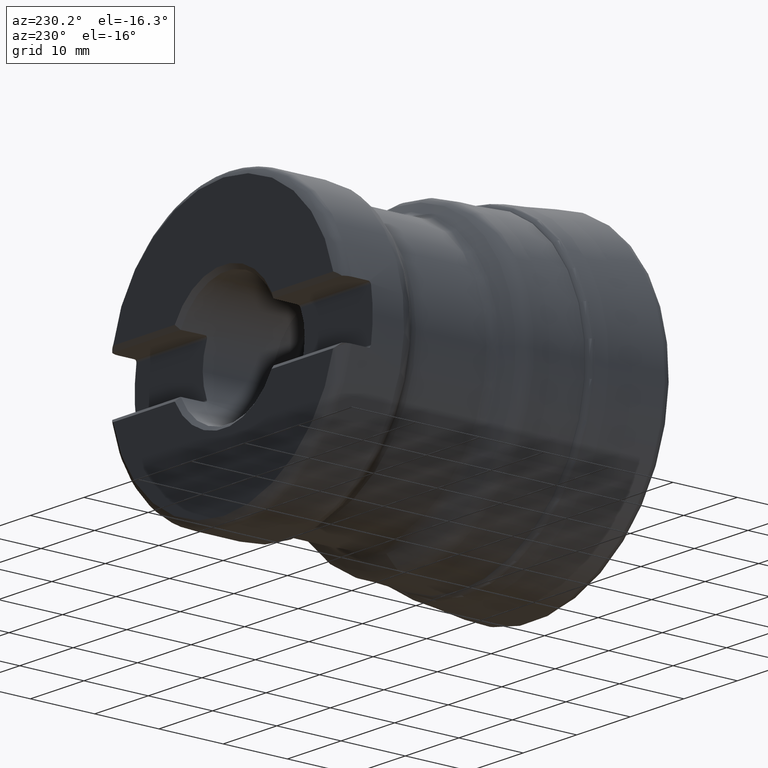
[diagram: clean part render]
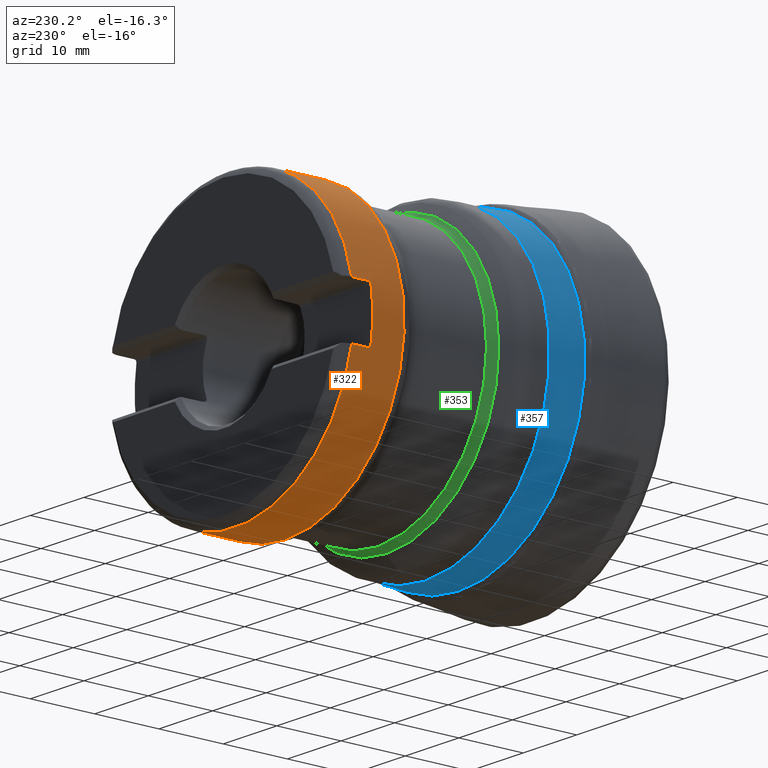
[diagram: same view with three faces highlighted in distinct colors, each labeled with its STEP entity id]
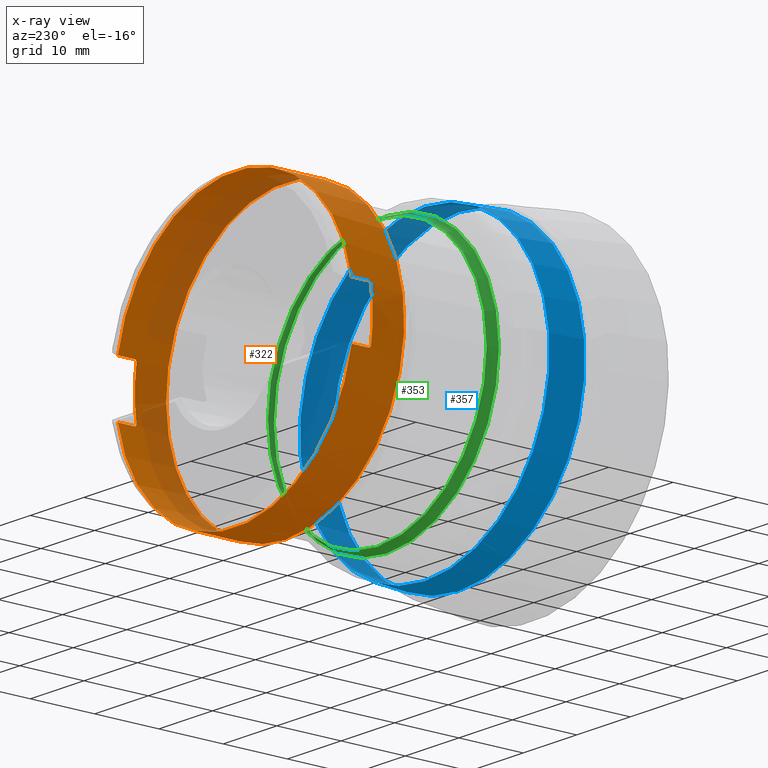
[diagram: x-ray of the same camera — body ghosted, the three highlighted faces saturated]
A machine part, auxiliary view with three faces highlighted in distinct colors.
The next image is the same camera in x-ray (body ghosted, the three faces saturated) — at least one of them is partly hidden behind the body in this view.
Their STEP definitions:

[orange] entity #322 — the highlighted cylindrical surface (bore or boss wall) has radius 22.225 mm, axis along (0, 1, 0).
#216=B_SPLINE_CURVE_WITH_KNOTS('',3,(#1531,#1532,#1533,#1534,#1535,#1536,
#1537,#1538,#1539,#1540,#1541,#1542,#1543,#1544,#1545,#1546),
 .UNSPECIFIED.,.F.,.F.,(4,3,3,3,3,4),(0.,0.210472364967233,0.42083381576524,
0.632936760626975,0.84860430323185,1.),.UNSPECIFIED.);
#217=B_SPLINE_CURVE_WITH_KNOTS('',3,(#1550,#1551,#1552,#1553,#1554,#1555,
#1556,#1557,#1558,#1559,#1560,#1561,#1562,#1563,#1564,#1565),
 .UNSPECIFIED.,.F.,.F.,(4,3,3,3,3,4),(0.,0.219175651858254,0.438420919236843,
0.656459471023132,0.871147037842587,1.),.UNSPECIFIED.);
#218=B_SPLINE_CURVE_WITH_KNOTS('',3,(#1573,#1574,#1575,#1576,#1577,#1578,
#1579,#1580,#1581,#1582,#1583,#1584,#1585,#1586,#1587,#1588),
 .UNSPECIFIED.,.F.,.F.,(4,3,3,3,3,4),(0.,0.210472364967233,0.42083381576524,
0.632936760626975,0.848604303231861,1.),.UNSPECIFIED.);
#219=B_SPLINE_CURVE_WITH_KNOTS('',3,(#1592,#1593,#1594,#1595,#1596,#1597,
#1598,#1599,#1600,#1601,#1602,#1603,#1604,#1605,#1606,#1607),
 .UNSPECIFIED.,.F.,.F.,(4,3,3,3,3,4),(0.,0.219175651858253,0.438420919236838,
0.656459471023132,0.871147037842588,1.),.UNSPECIFIED.);
#265=LINE('',#1524,#293);
#266=LINE('',#1529,#294);
#267=LINE('',#1567,#295);
#268=LINE('',#1571,#296);
#293=VECTOR('',#1248,1.);
#294=VECTOR('',#1251,1.);
#295=VECTOR('',#1254,1.);
#296=VECTOR('',#1257,1.);
#322=ADVANCED_FACE('',(#407,#408),#395,.T.);
#395=CYLINDRICAL_SURFACE('',#1135,22.225);
#407=FACE_BOUND('',#505,.T.);
#408=FACE_BOUND('',#506,.T.);
#505=EDGE_LOOP('',(#627));
#506=EDGE_LOOP('',(#628,#629,#630,#631,#632,#633,#634,#635,#636,#637,#638,
#639));
#627=ORIENTED_EDGE('',*,*,#950,.T.);
#628=ORIENTED_EDGE('',*,*,#951,.F.);
#629=ORIENTED_EDGE('',*,*,#952,.T.);
#630=ORIENTED_EDGE('',*,*,#953,.F.);
#631=ORIENTED_EDGE('',*,*,#954,.T.);
#632=ORIENTED_EDGE('',*,*,#955,.F.);
#633=ORIENTED_EDGE('',*,*,#956,.T.);
#634=ORIENTED_EDGE('',*,*,#957,.F.);
#635=ORIENTED_EDGE('',*,*,#958,.T.);
#636=ORIENTED_EDGE('',*,*,#959,.F.);
#637=ORIENTED_EDGE('',*,*,#960,.T.);
#638=ORIENTED_EDGE('',*,*,#961,.F.);
#639=ORIENTED_EDGE('',*,*,#962,.T.);
#857=VERTEX_POINT('',#1523);
#858=VERTEX_POINT('',#1525);
#859=VERTEX_POINT('',#1526);
#860=VERTEX_POINT('',#1528);
#861=VERTEX_POINT('',#1530);
#862=VERTEX_POINT('',#1547);
#863=VERTEX_POINT('',#1549);
#864=VERTEX_POINT('',#1566);
#865=VERTEX_POINT('',#1568);
#866=VERTEX_POINT('',#1570);
#867=VERTEX_POINT('',#1572);
#868=VERTEX_POINT('',#1589);
#869=VERTEX_POINT('',#1591);
#950=EDGE_CURVE('',#857,#857,#1065,.T.);
#951=EDGE_CURVE('',#858,#859,#265,.T.);
#952=EDGE_CURVE('',#858,#860,#1066,.T.);
#953=EDGE_CURVE('',#861,#860,#266,.T.);
#954=EDGE_CURVE('',#861,#862,#216,.T.);
#955=EDGE_CURVE('',#863,#862,#1067,.T.);
#956=EDGE_CURVE('',#863,#864,#217,.T.);
#957=EDGE_CURVE('',#865,#864,#267,.T.);
#958=EDGE_CURVE('',#865,#866,#1068,.T.);
#959=EDGE_CURVE('',#867,#866,#268,.T.);
#960=EDGE_CURVE('',#867,#868,#218,.T.);
#961=EDGE_CURVE('',#869,#868,#1069,.T.);
#962=EDGE_CURVE('',#869,#859,#219,.T.);
#1065=CIRCLE('',#1130,22.225);
#1066=CIRCLE('',#1131,22.225);
#1067=CIRCLE('',#1132,22.225);
#1068=CIRCLE('',#1133,22.225);
#1069=CIRCLE('',#1134,22.225);
#1130=AXIS2_PLACEMENT_3D('',#1522,#1246,#1247);
#1131=AXIS2_PLACEMENT_3D('',#1527,#1249,#1250);
#1132=AXIS2_PLACEMENT_3D('',#1548,#1252,#1253);
#1133=AXIS2_PLACEMENT_3D('',#1569,#1255,#1256);
#1134=AXIS2_PLACEMENT_3D('',#1590,#1258,#1259);
#1135=AXIS2_PLACEMENT_3D('',#1608,#1260,#1261);
#1246=DIRECTION('',(0.,1.,0.));
#1247=DIRECTION('',(0.,0.,-1.));
#1248=DIRECTION('',(0.,-1.,0.));
#1249=DIRECTION('',(0.,-1.,0.));
#1250=DIRECTION('',(0.,0.,-1.));
#1251=DIRECTION('',(0.,1.,0.));
#1252=DIRECTION('',(0.,1.,0.));
#1253=DIRECTION('',(0.,0.,1.));
#1254=DIRECTION('',(0.,-1.,0.));
#1255=DIRECTION('',(0.,-1.,0.));
#1256=DIRECTION('',(0.,0.,-1.));
#1257=DIRECTION('',(0.,1.,0.));
#1258=DIRECTION('',(0.,1.,0.));
#1259=DIRECTION('',(0.,0.,1.));
#1260=DIRECTION('',(0.,1.,0.));
#1261=DIRECTION('',(0.,0.,1.));
#1522=CARTESIAN_POINT('',(0.,40.3467275947744,0.));
#1523=CARTESIAN_POINT('',(0.,40.3467275947744,-22.225));
#1524=CARTESIAN_POINT('',(21.8293380568445,50.2,4.175));
#1525=CARTESIAN_POINT('',(21.8293380568445,48.1999999999985,4.175));
#1526=CARTESIAN_POINT('',(21.8293380568445,45.65,4.175));
#1527=CARTESIAN_POINT('',(0.,48.1999999999985,0.));
#1528=CARTESIAN_POINT('',(-21.8293380568445,48.1999999999985,4.175));
#1529=CARTESIAN_POINT('',(-21.8293380568445,50.2,4.175));
#1530=CARTESIAN_POINT('',(-21.8293380568445,45.65,4.175));
#1531=CARTESIAN_POINT('',(-21.8293380568445,45.65,4.175));
#1532=CARTESIAN_POINT('',(-21.8293380568445,45.6058065689365,4.175));
#1533=CARTESIAN_POINT('',(-21.8307835969848,45.5610042944692,4.16746058414637));
#1534=CARTESIAN_POINT('',(-21.8335246985364,45.5193163999003,4.15304999228273));
#1535=CARTESIAN_POINT('',(-21.8362649932676,45.477640775816,4.13864364205679));
#1536=CARTESIAN_POINT('',(-21.8403708574228,45.4379363501114,4.11698721111093));
#1537=CARTESIAN_POINT('',(-21.8454369819115,45.4033817039252,4.08992763619786));
#1538=CARTESIAN_POINT('',(-21.8505454572765,45.3685381940228,4.06264185351733));
#1539=CARTESIAN_POINT('',(-21.8567636399886,45.3379824408914,4.0291340727636));
#1540=CARTESIAN_POINT('',(-21.8635161586172,45.3140765837253,3.99215307595866));
#1541=CARTESIAN_POINT('',(-21.8703807036238,45.2897741209754,3.95455855294871));
#1542=CARTESIAN_POINT('',(-21.8779802340845,45.2716813922993,3.91235824001585));
#1543=CARTESIAN_POINT('',(-21.8856499668951,45.2611952766816,3.86897279992283));
#1544=CARTESIAN_POINT('',(-21.8910719580784,45.2537822900978,3.83830217821058));
#1545=CARTESIAN_POINT('',(-21.8966166250354,45.25,3.80655098660402));
#1546=CARTESIAN_POINT('',(-21.9020546981328,45.25,3.775));
#1547=CARTESIAN_POINT('',(-21.9020546981328,45.25,3.775));
#1548=CARTESIAN_POINT('',(0.,45.25,0.));
#1549=CARTESIAN_POINT('',(-21.9020546981328,45.25,-3.77500000000001));
#1550=CARTESIAN_POINT('',(-21.9020546981328,45.25,-3.77500000000001));
#1551=CARTESIAN_POINT('',(-21.8942378183556,45.25,-3.82035251084733));
#1552=CARTESIAN_POINT('',(-21.8861646129708,45.2579246413321,-3.86630445453132));
#1553=CARTESIAN_POINT('',(-21.8785250084134,45.2731349229352,-3.90906235000536));
#1554=CARTESIAN_POINT('',(-21.8708841158101,45.2883477690088,-3.95182745450839));
#1555=CARTESIAN_POINT('',(-21.8634663771173,45.3112785864427,-3.99258709417771));
#1556=CARTESIAN_POINT('',(-21.8569603388711,45.3400872684055,-4.02789147632066));
#1557=CARTESIAN_POINT('',(-21.8504910361036,45.3687332859812,-4.06299651697036));
#1558=CARTESIAN_POINT('',(-21.8447454840731,45.404008252674,-4.09368968980045));
#1559=CARTESIAN_POINT('',(-21.8403011683012,45.4429860639393,-4.1172648539898));
#1560=CARTESIAN_POINT('',(-21.8359245676766,45.4813699956602,-4.14048081874461));
#1561=CARTESIAN_POINT('',(-21.8326910223772,45.5244319116725,-4.15744091253669));
#1562=CARTESIAN_POINT('',(-21.8309401715052,45.5685254717582,-4.16661448038572));
#1563=CARTESIAN_POINT('',(-21.82987941277,45.5952396995513,-4.17217231651233));
#1564=CARTESIAN_POINT('',(-21.8293380568447,45.6226931378936,-4.17500000000069));
#1565=CARTESIAN_POINT('',(-21.8293380568447,45.6499999999999,-4.1750000000007));
#1566=CARTESIAN_POINT('',(-21.8293380568445,45.65,-4.17500000000001));
#1567=CARTESIAN_POINT('',(-21.8293380568445,50.2,-4.175));
#1568=CARTESIAN_POINT('',(-21.8293380568461,48.1999999999987,-4.17500000000001));
#1569=CARTESIAN_POINT('',(0.,48.1999999999985,0.));
#1570=CARTESIAN_POINT('',(21.8293380568445,48.1999999999985,-4.17500000000001));
#1571=CARTESIAN_POINT('',(21.8293380568445,50.2,-4.175));
#1572=CARTESIAN_POINT('',(21.8293380568445,45.65,-4.17500000000001));
#1573=CARTESIAN_POINT('',(21.8293380568445,45.65,-4.17500000000001));
#1574=CARTESIAN_POINT('',(21.8293380568445,45.6058065689365,-4.17500000000001));
#1575=CARTESIAN_POINT('',(21.8307835969848,45.5610042944692,-4.16746058414638));
#1576=CARTESIAN_POINT('',(21.8335246985364,45.5193163999003,-4.15304999228274));
#1577=CARTESIAN_POINT('',(21.8362649932676,45.477640775816,-4.1386436420568));
#1578=CARTESIAN_POINT('',(21.8403708574227,45.4379363501114,-4.11698721111094));
#1579=CARTESIAN_POINT('',(21.8454369819115,45.4033817039252,-4.08992763619787));
#1580=CARTESIAN_POINT('',(21.8505454572765,45.3685381940228,-4.06264185351734));
#1581=CARTESIAN_POINT('',(21.8567636399886,45.3379824408914,-4.02913407276361));
#1582=CARTESIAN_POINT('',(21.8635161586172,45.3140765837253,-3.99215307595867));
#1583=CARTESIAN_POINT('',(21.8703807036238,45.2897741209754,-3.95455855294872));
#1584=CARTESIAN_POINT('',(21.8779802340845,45.2716813922993,-3.91235824001585));
#1585=CARTESIAN_POINT('',(21.8856499668951,45.2611952766816,-3.86897279992283));
#1586=CARTESIAN_POINT('',(21.8910719580784,45.2537822900978,-3.83830217821058));
#1587=CARTESIAN_POINT('',(21.8966166250354,45.25,-3.80655098660403));
#1588=CARTESIAN_POINT('',(21.9020546981328,45.25,-3.77500000000001));
#1589=CARTESIAN_POINT('',(21.9020546981328,45.25,-3.77500000000001));
#1590=CARTESIAN_POINT('',(0.,45.25,0.));
#1591=CARTESIAN_POINT('',(21.9020546981328,45.25,3.775));
#1592=CARTESIAN_POINT('',(21.9020546981328,45.25,3.775));
#1593=CARTESIAN_POINT('',(21.8942378183556,45.25,3.82035251084732));
#1594=CARTESIAN_POINT('',(21.8861646129708,45.2579246413321,3.86630445453131));
#1595=CARTESIAN_POINT('',(21.8785250084134,45.2731349229352,3.90906235000535));
#1596=CARTESIAN_POINT('',(21.8708841158101,45.2883477690088,3.95182745450838));
#1597=CARTESIAN_POINT('',(21.8634663771173,45.3112785864427,3.99258709417769));
#1598=CARTESIAN_POINT('',(21.8569603388711,45.3400872684055,4.02789147632065));
#1599=CARTESIAN_POINT('',(21.8504910361036,45.3687332859812,4.06299651697034));
#1600=CARTESIAN_POINT('',(21.8447454840731,45.404008252674,4.09368968980045));
#1601=CARTESIAN_POINT('',(21.8403011683012,45.4429860639393,4.11726485398979));
#1602=CARTESIAN_POINT('',(21.8359245676766,45.4813699956602,4.1404808187446));
#1603=CARTESIAN_POINT('',(21.8326910223772,45.5244319116725,4.15744091253668));
#1604=CARTESIAN_POINT('',(21.8309401715052,45.5685254717582,4.16661448038571));
#1605=CARTESIAN_POINT('',(21.82987941277,45.5952396995513,4.17217231651232));
#1606=CARTESIAN_POINT('',(21.8293380568447,45.6226931378936,4.17500000000068));
#1607=CARTESIAN_POINT('',(21.8293380568447,45.6499999999999,4.17500000000069));
#1608=CARTESIAN_POINT('',(0.,50.2,0.));

[blue] entity #357 — the highlighted toroidal blend (fillet) surface has major radius 73.3183 mm and minor (blend) radius 50 mm.
#190=TOROIDAL_SURFACE('',#1199,73.3183322357492,50.);
#357=ADVANCED_FACE('',(#445,#446),#190,.F.);
#445=FACE_BOUND('',#559,.T.);
#446=FACE_BOUND('',#560,.T.);
#559=EDGE_LOOP('',(#767));
#560=EDGE_LOOP('',(#768));
#767=ORIENTED_EDGE('',*,*,#974,.F.);
#768=ORIENTED_EDGE('',*,*,#976,.F.);
#879=VERTEX_POINT('',#1695);
#881=VERTEX_POINT('',#1700);
#974=EDGE_CURVE('',#879,#879,#1073,.T.);
#976=EDGE_CURVE('',#881,#881,#1075,.T.);
#1073=CIRCLE('',#1141,23.5922374673355);
#1075=CIRCLE('',#1144,23.3183322357492);
#1141=AXIS2_PLACEMENT_3D('',#1694,#1272,#1273);
#1144=AXIS2_PLACEMENT_3D('',#1699,#1278,#1279);
#1199=AXIS2_PLACEMENT_3D('',#1928,#1408,#1409);
#1272=DIRECTION('',(0.,-1.,0.));
#1273=DIRECTION('',(0.,0.,-1.));
#1278=DIRECTION('',(0.,1.,0.));
#1279=DIRECTION('',(0.,0.,1.));
#1408=DIRECTION('',(0.,1.,0.));
#1409=DIRECTION('',(0.,0.,1.));
#1694=CARTESIAN_POINT('',(0.,13.3939658007693,0.));
#1695=CARTESIAN_POINT('',(0.,13.3939658007693,-23.5922374673355));
#1699=CARTESIAN_POINT('',(0.,18.620388964152,0.));
#1700=CARTESIAN_POINT('',(0.,18.620388964152,23.3183322357492));
#1928=CARTESIAN_POINT('',(0.,18.620388964152,0.));

[green] entity #353 — the highlighted toroidal blend (fillet) surface has major radius 22.425 mm and minor (blend) radius 2 mm.
#188=TOROIDAL_SURFACE('',#1193,22.425,2.);
#353=ADVANCED_FACE('',(#441,#442),#188,.F.);
#441=FACE_BOUND('',#553,.T.);
#442=FACE_BOUND('',#554,.T.);
#553=EDGE_LOOP('',(#755));
#554=EDGE_LOOP('',(#756));
#755=ORIENTED_EDGE('',*,*,#978,.F.);
#756=ORIENTED_EDGE('',*,*,#980,.F.);
#883=VERTEX_POINT('',#1705);
#885=VERTEX_POINT('',#1710);
#978=EDGE_CURVE('',#883,#883,#1077,.T.);
#980=EDGE_CURVE('',#885,#885,#1079,.T.);
#1077=CIRCLE('',#1147,21.0107864376269);
#1079=CIRCLE('',#1150,20.425);
#1147=AXIS2_PLACEMENT_3D('',#1704,#1284,#1285);
#1150=AXIS2_PLACEMENT_3D('',#1709,#1290,#1291);
#1193=AXIS2_PLACEMENT_3D('',#1914,#1392,#1393);
#1284=DIRECTION('',(0.,-1.,0.));
#1285=DIRECTION('',(0.,0.,-1.));
#1290=DIRECTION('',(0.,1.,0.));
#1291=DIRECTION('',(0.,0.,1.));
#1392=DIRECTION('',(0.,1.,0.));
#1393=DIRECTION('',(0.,0.,1.));
#1704=CARTESIAN_POINT('',(0.,24.6142135623701,0.));
#1705=CARTESIAN_POINT('',(0.,24.6142135623701,-21.0107864376269));
#1709=CARTESIAN_POINT('',(0.,26.0284271247432,0.));
#1710=CARTESIAN_POINT('',(0.,26.0284271247432,20.425));
#1914=CARTESIAN_POINT('',(0.,26.0284271247432,0.));